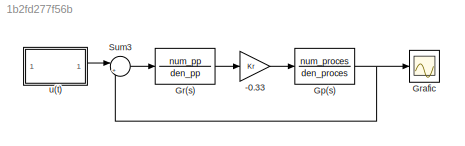
MODEL slx_1b2fd277f56b
KIND model
CONFIG AbsTol = auto
CONFIG EnableMultiTasking = off
CONFIG FixedStep = auto
CONFIG MaxStep = auto
CONFIG MinStep = auto
CONFIG RelTol = 1e-3
CONFIG SampleTimeConstraint = Unconstrained
CONFIG SolverName = VariableStepAuto
CONFIG StartTime = 0.0
CONFIG StopTime = 500
BLOCK [Gain] -0.33
  Gain = Kr
BLOCK [TransferFcn] Gp(s)
  Denominator = den_proces
  Numerator = num_proces
BLOCK [TransferFcn] Gr(s)
  Denominator = den_pp
  Numerator = num_pp
BLOCK [Scope] Grafic
  Floating = off
  NumInputPorts = 1
  ScopeSpecificationString = Simulink.scopes.TimeScopeBlockCfg('CurrentConfiguration', extmgr.ConfigurationSet(extmgr.Configuration('Core','General UI',true),extmgr.Configuration('Core','Source UI',true),extmgr.Configuration('Sources','WiredSimulink',true,'DataLoggingVariableName','ScopeData1'),extmgr.Configuration('Visuals','Time Domain',true,'SerializedDisplays',{struct('MinYLimReal','-50.00000','MaxYLimReal','120.00000','Y...<+1544ch>
BLOCK [Sum] Sum3
  Inputs = |+-
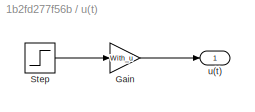
BLOCK [SubSystem] u(t)
BLOCK [Gain] u(t)/Gain
  Gain = With_u
BLOCK [Step] u(t)/Step
  After = Gref
  SampleTime = 0
  Time = 0
BLOCK [Outport] u(t)/u(t)
LINE -0.33:1 -> Gp(s):1
NET Gp(s):1 -> Grafic:1, Sum3:2
LINE Gr(s):1 -> -0.33:1
LINE Sum3:1 -> Gr(s):1
LINE u(t)/Gain:1 -> u(t)/u(t):1
LINE u(t)/Step:1 -> u(t)/Gain:1
LINE u(t):1 -> Sum3:1
note: NET lines group one-source signal fan-out (src -> all destinations, sorted); 1:1 wires keep LINE
